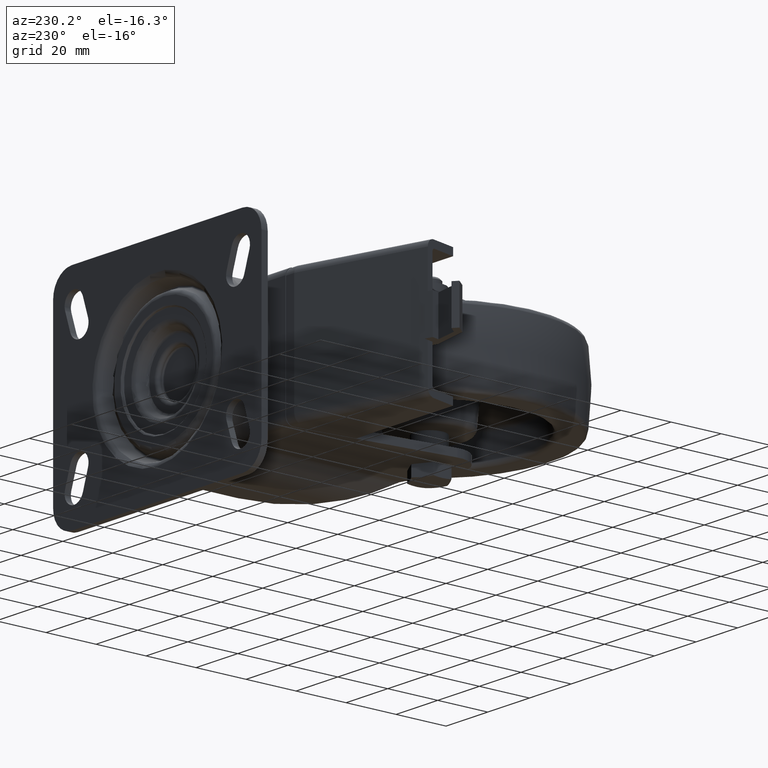
[diagram: clean part render]
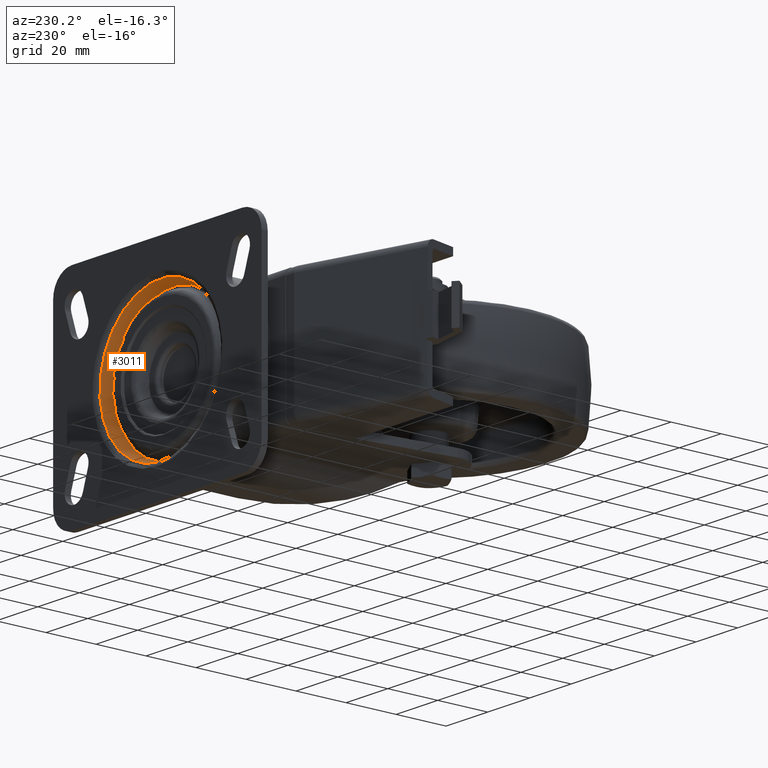
[diagram: same view with one face highlighted and labeled with its STEP entity id]
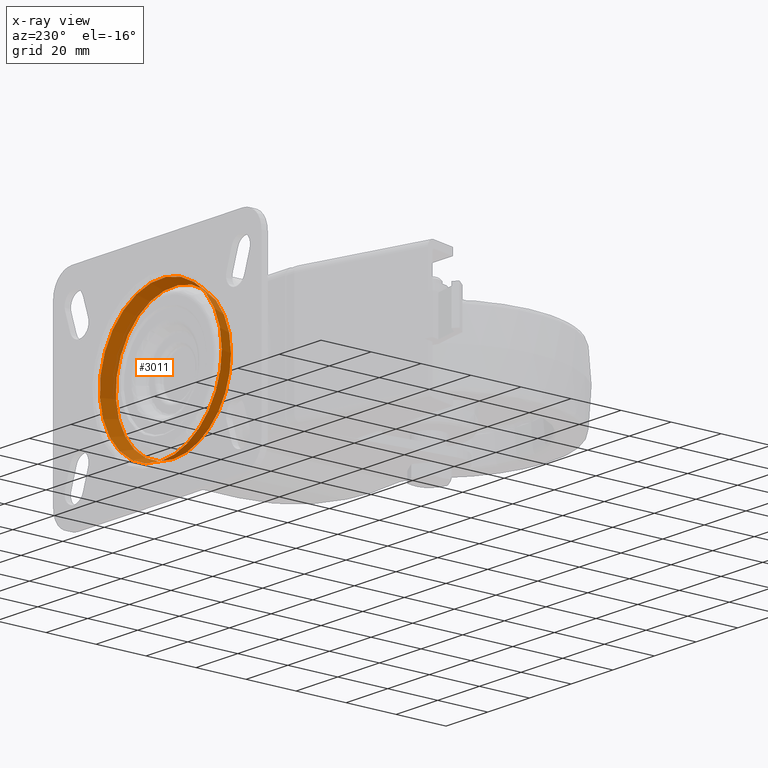
[diagram: x-ray of the same camera — body ghosted, the highlighted face saturated]
A machine part, auxiliary view. The second image highlights one B-rep face of the part: STEP entity #3011.
The next image is the same camera in x-ray: the body ghosted, the highlighted face saturated — about 0% of this face is hidden behind the body in this view.
In plain terms, the highlighted conical surface has half-angle 17.736 deg.
Its self-contained STEP definition (entity closure, byte-faithful):
#53=CONICAL_SURFACE('',#3278,28.4606458095185,0.309545062393904);
#232=FACE_OUTER_BOUND('',#410,.T.);
#410=EDGE_LOOP('',(#2101,#2102,#2103,#2104,#2105,#2106));
#629=CIRCLE('',#3276,27.6512361269877);
#630=CIRCLE('',#3277,27.6512361269877);
#631=CIRCLE('',#3279,29.2700554920494);
#632=CIRCLE('',#3280,29.2700554920494);
#816=LINE('',#4955,#1023);
#1023=VECTOR('',#3820,28.4606458095185);
#1265=VERTEX_POINT('',#4948);
#1266=VERTEX_POINT('',#4950);
#1267=VERTEX_POINT('',#4954);
#1268=VERTEX_POINT('',#4956);
#1584=EDGE_CURVE('',#1265,#1266,#629,.T.);
#1585=EDGE_CURVE('',#1266,#1265,#630,.T.);
#1586=EDGE_CURVE('',#1266,#1267,#816,.T.);
#1587=EDGE_CURVE('',#1267,#1268,#631,.T.);
#1588=EDGE_CURVE('',#1268,#1267,#632,.T.);
#2101=ORIENTED_EDGE('',*,*,#1585,.F.);
#2102=ORIENTED_EDGE('',*,*,#1586,.T.);
#2103=ORIENTED_EDGE('',*,*,#1587,.T.);
#2104=ORIENTED_EDGE('',*,*,#1588,.T.);
#2105=ORIENTED_EDGE('',*,*,#1586,.F.);
#2106=ORIENTED_EDGE('',*,*,#1584,.F.);
#3011=ADVANCED_FACE('',(#232),#53,.F.);
#3276=AXIS2_PLACEMENT_3D('',#4951,#3814,#3815);
#3277=AXIS2_PLACEMENT_3D('',#4952,#3816,#3817);
#3278=AXIS2_PLACEMENT_3D('',#4953,#3818,#3819);
#3279=AXIS2_PLACEMENT_3D('',#4957,#3821,#3822);
#3280=AXIS2_PLACEMENT_3D('',#4958,#3823,#3824);
#3814=DIRECTION('center_axis',(0.,1.,0.));
#3815=DIRECTION('ref_axis',(1.,0.,0.));
#3816=DIRECTION('center_axis',(0.,1.,0.));
#3817=DIRECTION('ref_axis',(1.,0.,0.));
#3818=DIRECTION('center_axis',(0.,1.,0.));
#3819=DIRECTION('ref_axis',(1.,0.,0.));
#3820=DIRECTION('',(-0.304625352535178,0.952472253975316,3.7305846292134E-17));
#3821=DIRECTION('center_axis',(0.,1.,0.));
#3822=DIRECTION('ref_axis',(1.,0.,0.));
#3823=DIRECTION('center_axis',(0.,1.,0.));
#3824=DIRECTION('ref_axis',(1.,0.,0.));
#4948=CARTESIAN_POINT('',(37.,71.5476873237324,-27.6512361269877));
#4950=CARTESIAN_POINT('',(9.34876387301235,71.5476873237324,3.3861879452145E-15));
#4951=CARTESIAN_POINT('Origin',(37.,71.5476873237324,0.));
#4952=CARTESIAN_POINT('Origin',(37.,71.5476873237324,0.));
#4953=CARTESIAN_POINT('Origin',(37.,74.0784690144014,0.));
#4954=CARTESIAN_POINT('',(7.72994450795063,76.6092507050704,3.58454797692037E-15));
#4955=CARTESIAN_POINT('',(8.5393541904815,74.0784690144014,3.48542387922934E-15));
#4956=CARTESIAN_POINT('',(37.,76.6092507050704,-29.2700554920494));
#4957=CARTESIAN_POINT('Origin',(37.,76.6092507050704,0.));
#4958=CARTESIAN_POINT('Origin',(37.,76.6092507050704,0.));